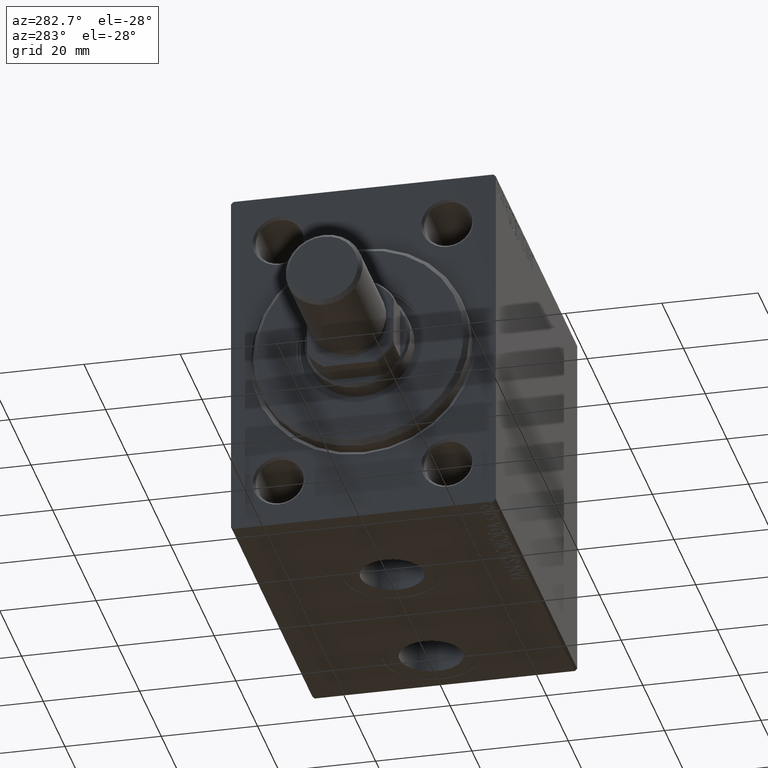
[diagram: clean part render]
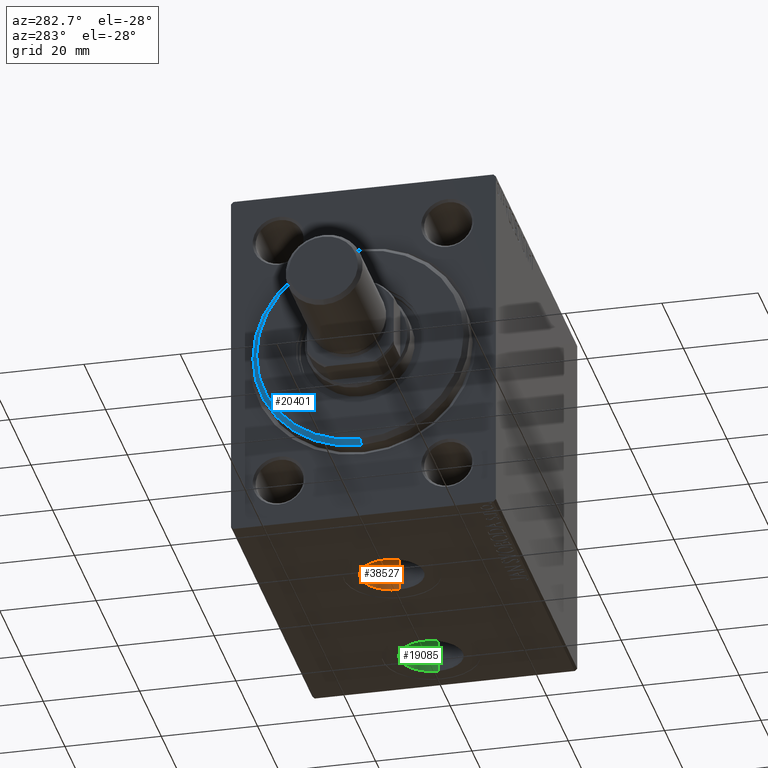
[diagram: same view with three faces highlighted in distinct colors, each labeled with its STEP entity id]
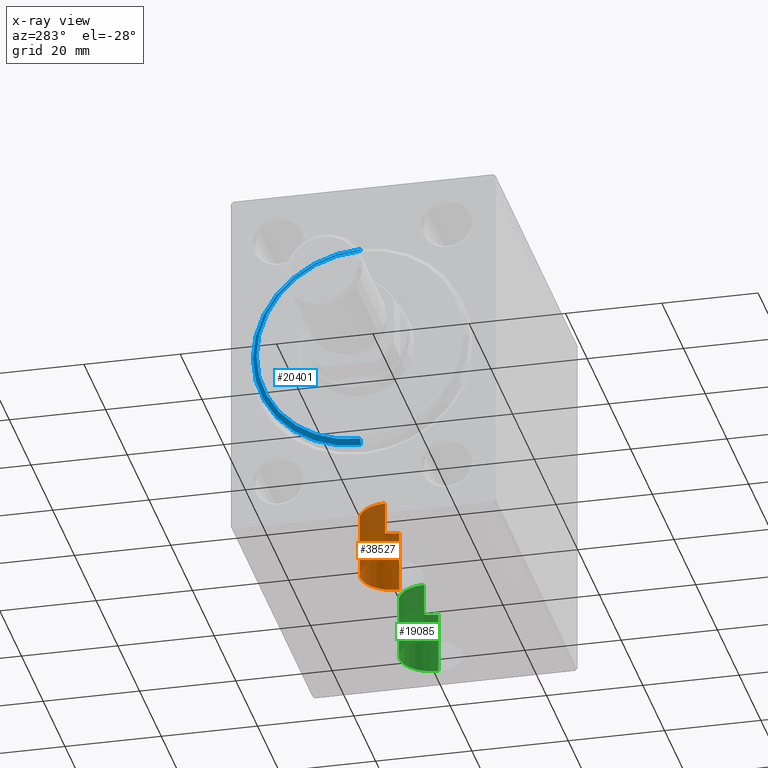
[diagram: x-ray of the same camera — body ghosted, the three highlighted faces saturated]
A machine part, auxiliary view with three faces highlighted in distinct colors.
The next image is the same camera in x-ray (body ghosted, the three faces saturated) — at least one of them is partly hidden behind the body in this view.
Their STEP definitions:

[orange] entity #38527 — the highlighted cylindrical surface (edge-blend (fillet) strip) has radius 6.58 mm, axis along (-0, -0, -1).
#712 = FACE_OUTER_BOUND ( 'NONE', #5498, .T. ) ;
#1352 = DIRECTION ( 'NONE',  ( -1.000000000000000000, 0.000000000000000000, 0.000000000000000000 ) ) ;
#1428 = CARTESIAN_POINT ( 'NONE',  ( 19.91999999999999815, -3.461774290897328353E-15, -37.39999999999999858 ) ) ;
#1652 = CARTESIAN_POINT ( 'NONE',  ( 19.91999999999999815, -3.461774290897328353E-15, -24.49999999999999289 ) ) ;
#2408 = ORIENTED_EDGE ( 'NONE', *, *, #17885, .T. ) ;
#4225 = CARTESIAN_POINT ( 'NONE',  ( 33.07999999999999829, -2.655956697058369311E-15, -37.39999999999999858 ) ) ;
#4500 = VERTEX_POINT ( 'NONE', #4225 ) ;
#4864 = ORIENTED_EDGE ( 'NONE', *, *, #23706, .F. ) ;
#5203 = AXIS2_PLACEMENT_3D ( 'NONE', #33250, #15523, #1352 ) ;
#5498 = EDGE_LOOP ( 'NONE', ( #4864, #46042, #37560, #2408 ) ) ;
#6921 = CARTESIAN_POINT ( 'NONE',  ( 19.91999999999999815, -3.461774290897328353E-15, -24.49999999999999289 ) ) ;
#7525 = VECTOR ( 'NONE', #7526, 1000.000000000000000 ) ;
#7526 = DIRECTION ( 'NONE',  ( -0.000000000000000000, -0.000000000000000000, -1.000000000000000000 ) ) ;
#8662 = CARTESIAN_POINT ( 'NONE',  ( 26.50000000000000000, -3.461774290897328353E-15, -24.49999999999999289 ) ) ;
#9139 = VERTEX_POINT ( 'NONE', #26069 ) ;
#9424 = EDGE_CURVE ( 'NONE', #19653, #27365, #41843, .T. ) ;
#10394 = CIRCLE ( 'NONE', #5203, 6.580000000000002736 ) ;
#11909 = DIRECTION ( 'NONE',  ( -1.000000000000000000, 0.000000000000000000, 0.000000000000000000 ) ) ;
#14881 = CYLINDRICAL_SURFACE ( 'NONE', #19687, 6.580000000000002736 ) ;
#15523 = DIRECTION ( 'NONE',  ( 0.000000000000000000, 0.000000000000000000, -1.000000000000000000 ) ) ;
#15574 = CARTESIAN_POINT ( 'NONE',  ( 26.50000000000000000, -3.461774290897328353E-15, -24.49999999999999289 ) ) ;
#17885 = EDGE_CURVE ( 'NONE', #27365, #4500, #10394, .T. ) ;
#18225 = CARTESIAN_POINT ( 'NONE',  ( 33.07999999999999829, -2.655956697058369706E-15, -24.49999999999999289 ) ) ;
#19653 = VERTEX_POINT ( 'NONE', #1652 ) ;
#19687 = AXIS2_PLACEMENT_3D ( 'NONE', #15574, #29349, #36559 ) ;
#21118 = DIRECTION ( 'NONE',  ( -0.000000000000000000, -0.000000000000000000, -1.000000000000000000 ) ) ;
#23706 = EDGE_CURVE ( 'NONE', #9139, #4500, #28942, .T. ) ;
#24726 = VECTOR ( 'NONE', #21118, 1000.000000000000000 ) ;
#26069 = CARTESIAN_POINT ( 'NONE',  ( 33.07999999999999829, -2.655956697058369311E-15, -24.49999999999999289 ) ) ;
#26440 = AXIS2_PLACEMENT_3D ( 'NONE', #8662, #40090, #11909 ) ;
#27365 = VERTEX_POINT ( 'NONE', #1428 ) ;
#28942 = LINE ( 'NONE', #18225, #7525 ) ;
#29349 = DIRECTION ( 'NONE',  ( -0.000000000000000000, -0.000000000000000000, -1.000000000000000000 ) ) ;
#33250 = CARTESIAN_POINT ( 'NONE',  ( 26.50000000000000000, -3.461774290897328353E-15, -37.39999999999999858 ) ) ;
#35677 = EDGE_CURVE ( 'NONE', #19653, #9139, #44982, .T. ) ;
#36559 = DIRECTION ( 'NONE',  ( -1.000000000000000000, 0.000000000000000000, 0.000000000000000000 ) ) ;
#37560 = ORIENTED_EDGE ( 'NONE', *, *, #9424, .T. ) ;
#38527 = ADVANCED_FACE ( 'NONE', ( #712 ), #14881, .F. ) ;
#40090 = DIRECTION ( 'NONE',  ( 0.000000000000000000, 0.000000000000000000, -1.000000000000000000 ) ) ;
#41843 = LINE ( 'NONE', #6921, #24726 ) ;
#44982 = CIRCLE ( 'NONE', #26440, 6.580000000000002736 ) ;
#46042 = ORIENTED_EDGE ( 'NONE', *, *, #35677, .F. ) ;

[blue] entity #20401 — the highlighted conical surface has half-angle 45 deg.
#161 = DIRECTION ( 'NONE',  ( 0.000000000000000000, 0.000000000000000000, 1.000000000000000000 ) ) ;
#215 = VECTOR ( 'NONE', #16621, 1000.000000000000000 ) ;
#1120 = AXIS2_PLACEMENT_3D ( 'NONE', #41444, #9549, #34250 ) ;
#2321 = ORIENTED_EDGE ( 'NONE', *, *, #26709, .F. ) ;
#2326 = CARTESIAN_POINT ( 'NONE',  ( 1.999999999999999112, 0.000000000000000000, 0.000000000000000000 ) ) ;
#3653 = FACE_OUTER_BOUND ( 'NONE', #8055, .T. ) ;
#5585 = DIRECTION ( 'NONE',  ( -1.000000000000000000, 0.000000000000000000, 0.000000000000000000 ) ) ;
#5927 = LINE ( 'NONE', #26904, #215 ) ;
#8055 = EDGE_LOOP ( 'NONE', ( #28018, #13357, #27967, #2321 ) ) ;
#8192 = AXIS2_PLACEMENT_3D ( 'NONE', #17835, #32052, #161 ) ;
#9549 = DIRECTION ( 'NONE',  ( 1.000000000000000000, -0.000000000000000000, 0.000000000000000000 ) ) ;
#10129 = EDGE_CURVE ( 'NONE', #31748, #19375, #29478, .T. ) ;
#13357 = ORIENTED_EDGE ( 'NONE', *, *, #37388, .F. ) ;
#14479 = CIRCLE ( 'NONE', #1120, 21.50000000000000355 ) ;
#15255 = CARTESIAN_POINT ( 'NONE',  ( 3.000000000000000000, 0.000000000000000000, 21.50000000000000355 ) ) ;
#15782 = CIRCLE ( 'NONE', #35115, 22.50000000000000355 ) ;
#16621 = DIRECTION ( 'NONE',  ( -0.7071067811865487940, 8.659560562354919300E-17, -0.7071067811865463515 ) ) ;
#17077 = CARTESIAN_POINT ( 'NONE',  ( 1.999999999999999112, 2.755455298081545172E-15, -22.50000000000000355 ) ) ;
#17835 = CARTESIAN_POINT ( 'NONE',  ( 3.000000000000000000, 0.000000000000000000, 0.000000000000000000 ) ) ;
#19197 = DIRECTION ( 'NONE',  ( -0.7071067811865487940, 0.000000000000000000, 0.7071067811865463515 ) ) ;
#19375 = VERTEX_POINT ( 'NONE', #26391 ) ;
#19770 = DIRECTION ( 'NONE',  ( 0.000000000000000000, 0.000000000000000000, -1.000000000000000000 ) ) ;
#20061 = CONICAL_SURFACE ( 'NONE', #8192, 21.50000000000000355, 0.7853981633974466137 ) ;
#20401 = ADVANCED_FACE ( 'NONE', ( #3653 ), #20061, .T. ) ;
#25488 = VERTEX_POINT ( 'NONE', #17077 ) ;
#26391 = CARTESIAN_POINT ( 'NONE',  ( 1.999999999999999112, 0.000000000000000000, 22.50000000000000355 ) ) ;
#26709 = EDGE_CURVE ( 'NONE', #25488, #19375, #15782, .T. ) ;
#26904 = CARTESIAN_POINT ( 'NONE',  ( 3.000000000000000000, 2.632990618166810024E-15, -21.50000000000000355 ) ) ;
#27292 = CARTESIAN_POINT ( 'NONE',  ( 3.000000000000000000, 2.694222958124177598E-15, -21.50000000000000355 ) ) ;
#27967 = ORIENTED_EDGE ( 'NONE', *, *, #10129, .T. ) ;
#28018 = ORIENTED_EDGE ( 'NONE', *, *, #28147, .F. ) ;
#28147 = EDGE_CURVE ( 'NONE', #40730, #25488, #5927, .T. ) ;
#29478 = LINE ( 'NONE', #15255, #39607 ) ;
#31748 = VERTEX_POINT ( 'NONE', #32500 ) ;
#32052 = DIRECTION ( 'NONE',  ( -1.000000000000000000, 0.000000000000000000, 0.000000000000000000 ) ) ;
#32500 = CARTESIAN_POINT ( 'NONE',  ( 3.000000000000000000, 0.000000000000000000, 21.50000000000000355 ) ) ;
#34250 = DIRECTION ( 'NONE',  ( 0.000000000000000000, 0.000000000000000000, -1.000000000000000000 ) ) ;
#35115 = AXIS2_PLACEMENT_3D ( 'NONE', #2326, #5585, #19770 ) ;
#37388 = EDGE_CURVE ( 'NONE', #31748, #40730, #14479, .T. ) ;
#39607 = VECTOR ( 'NONE', #19197, 1000.000000000000000 ) ;
#40730 = VERTEX_POINT ( 'NONE', #27292 ) ;
#41444 = CARTESIAN_POINT ( 'NONE',  ( 3.000000000000000000, 0.000000000000000000, 0.000000000000000000 ) ) ;

[green] entity #19085 — the highlighted cylindrical surface (edge-blend (fillet) strip) has radius 6.58 mm, axis along (-0, -0, -1).
#776 = DIRECTION ( 'NONE',  ( -1.000000000000000000, 0.000000000000000000, 0.000000000000000000 ) ) ;
#1515 = EDGE_CURVE ( 'NONE', #6556, #18388, #21530, .T. ) ;
#1579 = VECTOR ( 'NONE', #3698, 1000.000000000000000 ) ;
#3698 = DIRECTION ( 'NONE',  ( -0.000000000000000000, -0.000000000000000000, -1.000000000000000000 ) ) ;
#4341 = CARTESIAN_POINT ( 'NONE',  ( 62.49999999999999289, -7.523326685254106813E-15, -24.49999999999999289 ) ) ;
#6556 = VERTEX_POINT ( 'NONE', #39728 ) ;
#8562 = EDGE_LOOP ( 'NONE', ( #31872, #30128, #31413, #8697 ) ) ;
#8697 = ORIENTED_EDGE ( 'NONE', *, *, #24382, .T. ) ;
#11586 = LINE ( 'NONE', #28605, #1579 ) ;
#13429 = DIRECTION ( 'NONE',  ( -0.000000000000000000, -0.000000000000000000, -1.000000000000000000 ) ) ;
#14883 = AXIS2_PLACEMENT_3D ( 'NONE', #4341, #43668, #18519 ) ;
#16307 = VECTOR ( 'NONE', #13429, 1000.000000000000000 ) ;
#16466 = LINE ( 'NONE', #26978, #16307 ) ;
#16483 = EDGE_CURVE ( 'NONE', #6556, #16968, #16466, .T. ) ;
#16968 = VERTEX_POINT ( 'NONE', #24804 ) ;
#18388 = VERTEX_POINT ( 'NONE', #34324 ) ;
#18448 = DIRECTION ( 'NONE',  ( 0.000000000000000000, 0.000000000000000000, -1.000000000000000000 ) ) ;
#18519 = DIRECTION ( 'NONE',  ( -1.000000000000000000, 0.000000000000000000, 0.000000000000000000 ) ) ;
#19085 = ADVANCED_FACE ( 'NONE', ( #29708 ), #28782, .F. ) ;
#21530 = CIRCLE ( 'NONE', #29727, 6.580000000000002736 ) ;
#21648 = AXIS2_PLACEMENT_3D ( 'NONE', #24411, #23722, #34446 ) ;
#23722 = DIRECTION ( 'NONE',  ( 0.000000000000000000, 0.000000000000000000, -1.000000000000000000 ) ) ;
#24382 = EDGE_CURVE ( 'NONE', #16968, #29806, #29867, .T. ) ;
#24396 = EDGE_CURVE ( 'NONE', #18388, #29806, #11586, .T. ) ;
#24411 = CARTESIAN_POINT ( 'NONE',  ( 62.49999999999999289, -7.523326685254106813E-15, -37.39999999999999858 ) ) ;
#24804 = CARTESIAN_POINT ( 'NONE',  ( 55.91999999999998749, -7.523326685254106813E-15, -37.39999999999999858 ) ) ;
#26590 = CARTESIAN_POINT ( 'NONE',  ( 69.07999999999999829, -6.717509091415148559E-15, -37.39999999999999858 ) ) ;
#26978 = CARTESIAN_POINT ( 'NONE',  ( 55.91999999999998749, -7.523326685254106813E-15, -24.49999999999999289 ) ) ;
#28605 = CARTESIAN_POINT ( 'NONE',  ( 69.07999999999999829, -6.717509091415147771E-15, -24.49999999999999289 ) ) ;
#28782 = CYLINDRICAL_SURFACE ( 'NONE', #14883, 6.580000000000002736 ) ;
#29708 = FACE_OUTER_BOUND ( 'NONE', #8562, .T. ) ;
#29727 = AXIS2_PLACEMENT_3D ( 'NONE', #44052, #18448, #776 ) ;
#29806 = VERTEX_POINT ( 'NONE', #26590 ) ;
#29867 = CIRCLE ( 'NONE', #21648, 6.580000000000002736 ) ;
#30128 = ORIENTED_EDGE ( 'NONE', *, *, #1515, .F. ) ;
#31413 = ORIENTED_EDGE ( 'NONE', *, *, #16483, .T. ) ;
#31872 = ORIENTED_EDGE ( 'NONE', *, *, #24396, .F. ) ;
#34324 = CARTESIAN_POINT ( 'NONE',  ( 69.07999999999999829, -6.717509091415148559E-15, -24.49999999999999289 ) ) ;
#34446 = DIRECTION ( 'NONE',  ( -1.000000000000000000, 0.000000000000000000, 0.000000000000000000 ) ) ;
#39728 = CARTESIAN_POINT ( 'NONE',  ( 55.91999999999998749, -7.523326685254106813E-15, -24.49999999999999289 ) ) ;
#43668 = DIRECTION ( 'NONE',  ( -0.000000000000000000, -0.000000000000000000, -1.000000000000000000 ) ) ;
#44052 = CARTESIAN_POINT ( 'NONE',  ( 62.49999999999999289, -7.523326685254106813E-15, -24.49999999999999289 ) ) ;